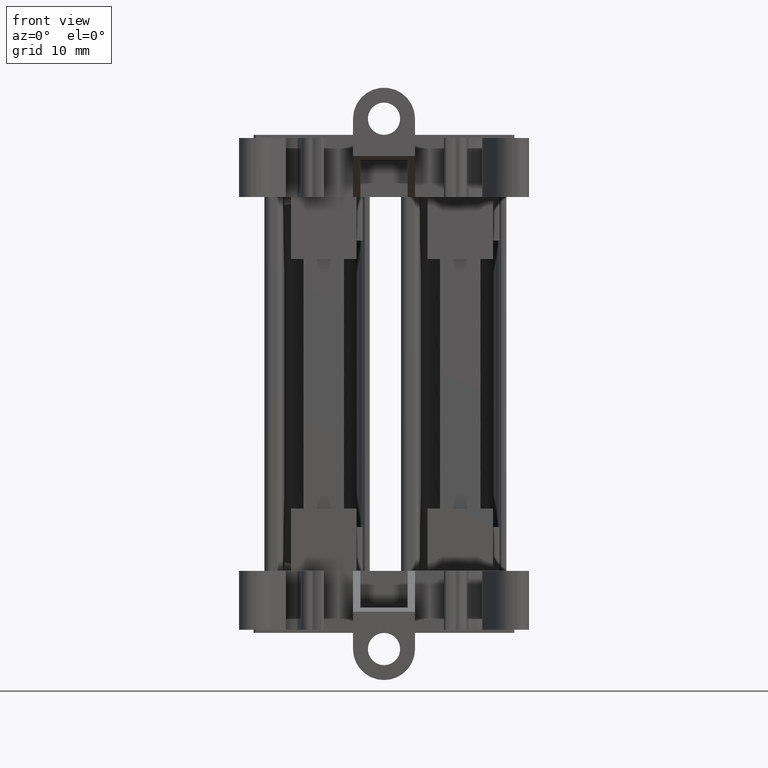
[diagram: clean part render]
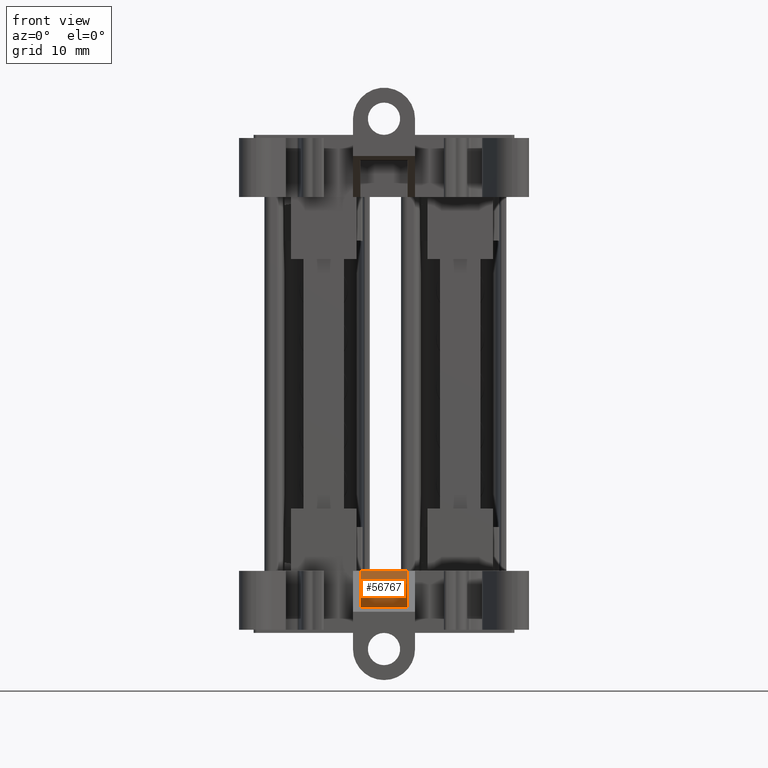
[diagram: same view with one face highlighted and labeled with its STEP entity id]
A machine part, front view. The second image highlights one B-rep face of the part: STEP entity #56767.
In plain terms, the highlighted planar face has unit normal (-0, -1, 0).
Its self-contained STEP definition (entity closure, byte-faithful):
#8545 = CARTESIAN_POINT ( 'NONE',  ( -51.09073332295690100, 11.22264432959167900, -32.09224290364844700 ) ) ;
#8567 = LINE ( 'NONE', #8545, #13495 ) ;
#8611 = DIRECTION ( 'NONE',  ( 1.000000000000000000, 0.0000000000000000000, 1.756949432570529700E-030 ) ) ;
#12027 = ORIENTED_EDGE ( 'NONE', *, *, #21115, .F. ) ;
#12130 = ORIENTED_EDGE ( 'NONE', *, *, #57646, .F. ) ;
#12159 = ORIENTED_EDGE ( 'NONE', *, *, #21066, .T. ) ;
#12245 = ORIENTED_EDGE ( 'NONE', *, *, #21100, .T. ) ;
#13216 = AXIS2_PLACEMENT_3D ( 'NONE', #16026, #15981, #16194 ) ;
#13495 = VECTOR ( 'NONE', #8611, 1000.000000000000000 ) ;
#15350 = FACE_OUTER_BOUND ( 'NONE', #37676, .T. ) ;
#15849 = PLANE ( 'NONE',  #13216 ) ;
#15981 = DIRECTION ( 'NONE',  ( -2.282530889443165000E-016, -1.000000000000000000, 7.965850201685501300E-015 ) ) ;
#16026 = CARTESIAN_POINT ( 'NONE',  ( -50.61132213551890400, 11.22264432959172000, -28.70225271720250500 ) ) ;
#16194 = DIRECTION ( 'NONE',  ( 0.0000000000000000000, -7.965850201685501300E-015, -1.000000000000000000 ) ) ;
#18285 = VERTEX_POINT ( 'NONE', #36488 ) ;
#18319 = VERTEX_POINT ( 'NONE', #36495 ) ;
#21066 = EDGE_CURVE ( 'NONE', #18319, #43236, #36935, .T. ) ;
#21100 = EDGE_CURVE ( 'NONE', #43236, #45424, #36987, .T. ) ;
#21115 = EDGE_CURVE ( 'NONE', #18285, #45424, #36999, .T. ) ;
#25910 = VECTOR ( 'NONE', #37007, 1000.000000000000000 ) ;
#25927 = VECTOR ( 'NONE', #36934, 1000.000000000000000 ) ;
#26056 = VECTOR ( 'NONE', #37071, 1000.000000000000000 ) ;
#34675 = CARTESIAN_POINT ( 'NONE',  ( -50.61132213551891100, 11.22264432959164400, -37.97487293306941300 ) ) ;
#34791 = CARTESIAN_POINT ( 'NONE',  ( -43.03369701287485300, 11.22264432959168600, -37.97487293306942000 ) ) ;
#36488 = CARTESIAN_POINT ( 'NONE',  ( -43.03369701287485300, 11.22264432959170600, -32.09224290364844700 ) ) ;
#36495 = CARTESIAN_POINT ( 'NONE',  ( -50.61132213551890400, 11.22264432959167700, -32.09224290364844700 ) ) ;
#36928 = CARTESIAN_POINT ( 'NONE',  ( -50.61132213551890400, 11.22264432959172000, -28.70225271720250500 ) ) ;
#36934 = DIRECTION ( 'NONE',  ( 0.0000000000000000000, -7.965850201685501300E-015, -1.000000000000000000 ) ) ;
#36935 = LINE ( 'NONE', #36928, #25927 ) ;
#36987 = LINE ( 'NONE', #37032, #25910 ) ;
#36999 = LINE ( 'NONE', #37044, #26056 ) ;
#37007 = DIRECTION ( 'NONE',  ( 1.000000000000000000, -2.282530889443165000E-016, 1.818229914602422200E-030 ) ) ;
#37032 = CARTESIAN_POINT ( 'NONE',  ( -50.61132213551890400, 11.22264432959164500, -37.97487293306941300 ) ) ;
#37044 = CARTESIAN_POINT ( 'NONE',  ( -43.03369701287485300, 11.22264432959170900, -28.70225271720235600 ) ) ;
#37071 = DIRECTION ( 'NONE',  ( 9.642931208652439700E-031, -3.362835714242704500E-046, -1.000000000000000000 ) ) ;
#37676 = EDGE_LOOP ( 'NONE', ( #12027, #12130, #12159, #12245 ) ) ;
#43236 = VERTEX_POINT ( 'NONE', #34675 ) ;
#45424 = VERTEX_POINT ( 'NONE', #34791 ) ;
#56767 = ADVANCED_FACE ( 'NONE', ( #15350 ), #15849, .T. ) ;
#57646 = EDGE_CURVE ( 'NONE', #18319, #18285, #8567, .T. ) ;